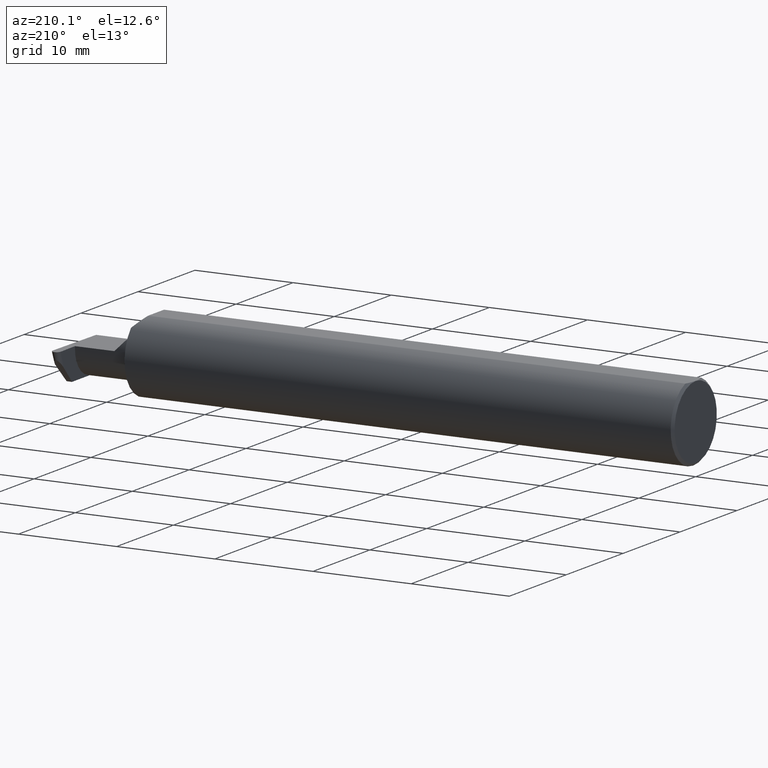
[diagram: clean part render]
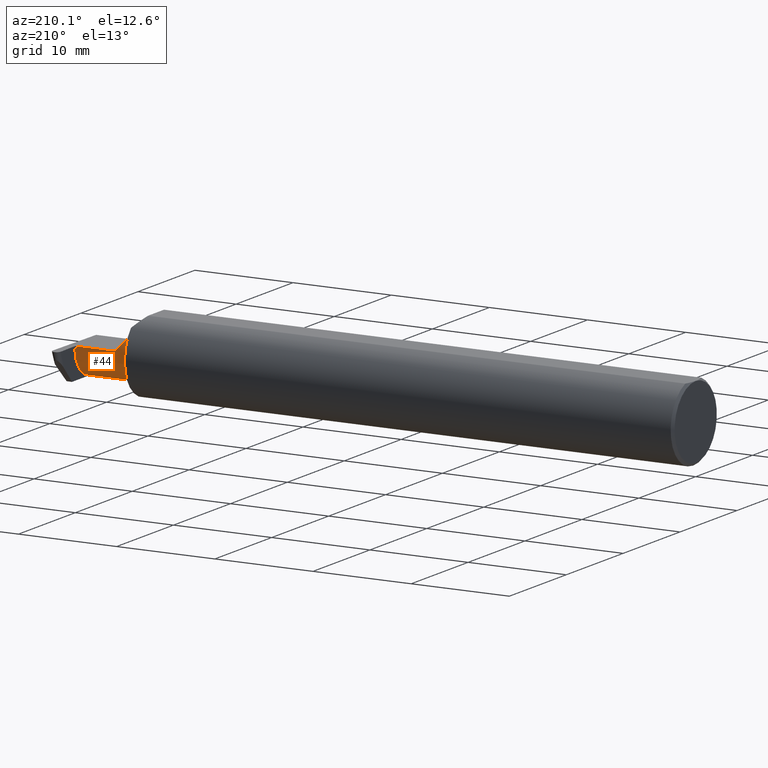
[diagram: same view with one face highlighted and labeled with its STEP entity id]
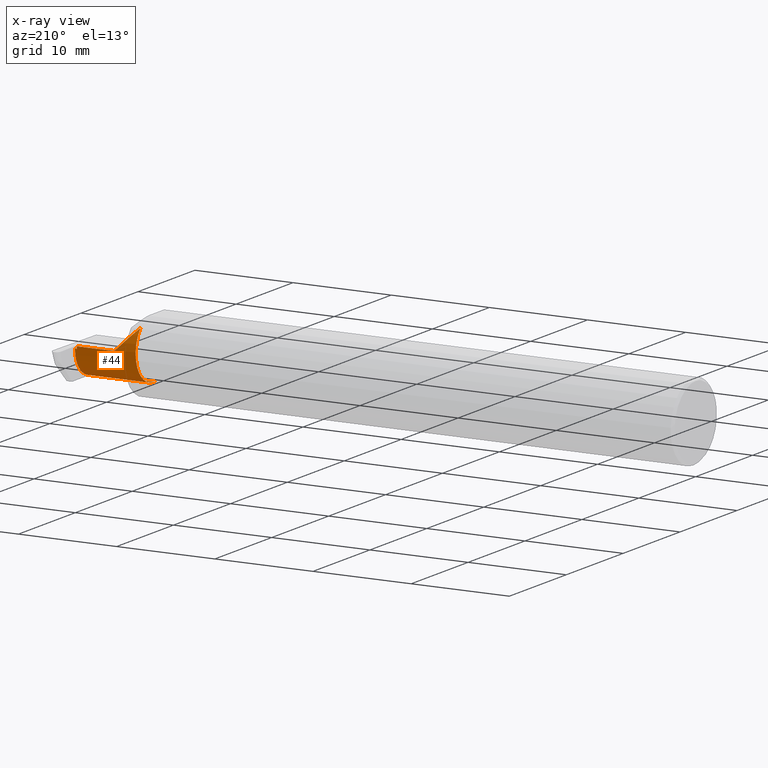
[diagram: x-ray of the same camera — body ghosted, the highlighted face saturated]
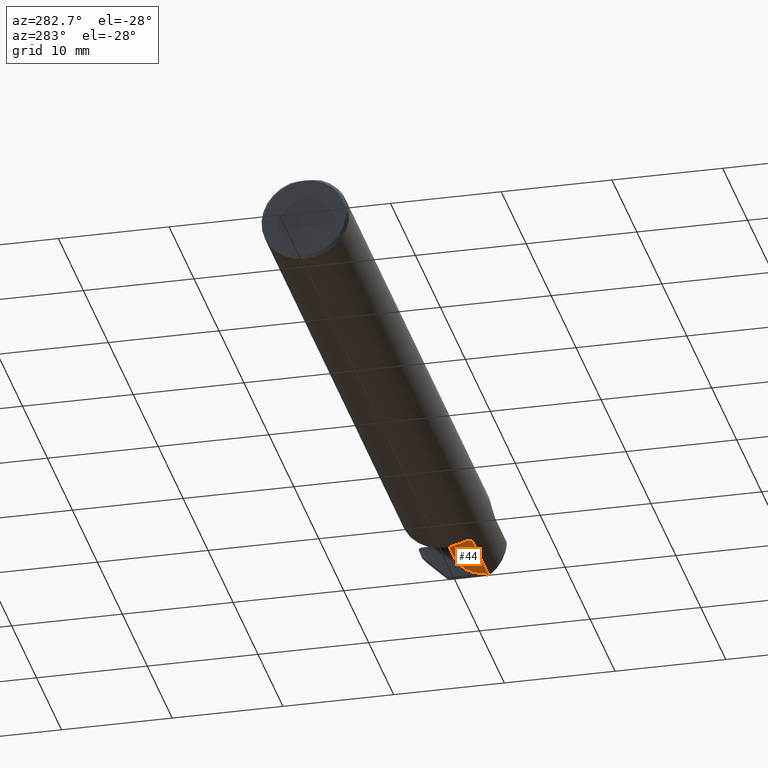
[diagram: same view with one face highlighted and labeled with its STEP entity id]
A machine part, auxiliary view. The second image highlights one B-rep face of the part: STEP entity #44.
The next image is the same camera in x-ray: the body ghosted, the highlighted face saturated — about 0% of this face is hidden behind the body in this view.
A second angle (auxiliary view) of the same face is appended — the face is thin or edge-on in the first view.
In plain terms, the highlighted cylindrical surface (edge-blend (fillet) strip) has radius 3.175 mm, axis along (-1, -0, -0).
Its self-contained STEP definition (entity closure, byte-faithful):
#4 = CARTESIAN_POINT ( 'NONE',  ( 2.248393398721534098, 0.02424716088558254157, 0.06160660127846561557 ) ) ;
#6 = ORIENTED_EDGE ( 'NONE', *, *, #64, .T. ) ;
#9 = CIRCLE ( 'NONE', #680, 0.1250000000000001110 ) ;
#26 = DIRECTION ( 'NONE',  ( -1.000000000000000000, -1.922274392784743754E-16, -0.000000000000000000 ) ) ;
#44 = ADVANCED_FACE ( 'NONE', ( #581 ), #416, .T. ) ;
#52 = CARTESIAN_POINT ( 'NONE',  ( 2.472736521078112926, -0.01986741890188668466, -0.1250000000000000833 ) ) ;
#54 = CARTESIAN_POINT ( 'NONE',  ( 2.310000000000000053, 0.03589999999999995278, 2.326828918379970872E-17 ) ) ;
#55 = VERTEX_POINT ( 'NONE', #389 ) ;
#64 = EDGE_CURVE ( 'NONE', #499, #238, #354, .T. ) ;
#79 = CARTESIAN_POINT ( 'NONE',  ( 2.345733190000000246, -0.09360841750841737696, -0.1249186702281520900 ) ) ;
#91 = ORIENTED_EDGE ( 'NONE', *, *, #528, .F. ) ;
#92 = CARTESIAN_POINT ( 'NONE',  ( 2.460968164375760381, 0.03569700418831855959, -0.005813039478679222008 ) ) ;
#99 = DIRECTION ( 'NONE',  ( -1.000000000000000000, -1.922274392784743754E-16, -0.000000000000000000 ) ) ;
#112 =( BOUNDED_CURVE ( )  B_SPLINE_CURVE ( 3, ( #591, #4, #652, #595 ),
 .UNSPECIFIED., .F., .F. ) 
 B_SPLINE_CURVE_WITH_KNOTS ( ( 4, 4 ),
 ( 0.8230336921349832302, 1.570796326794896780 ),
 .UNSPECIFIED. ) 
 CURVE ( )  GEOMETRIC_REPRESENTATION_ITEM ( )  RATIONAL_B_SPLINE_CURVE ( ( 1.000000000000000000, 0.9539445215436042069, 0.9539445215436042069, 1.000000000000000000 ) ) 
 REPRESENTATION_ITEM ( '' )  );
#120 = VERTEX_POINT ( 'NONE', #349 ) ;
#154 = DIRECTION ( 'NONE',  ( -1.000000000000000000, -1.922274392784743754E-16, -0.000000000000000000 ) ) ;
#170 = ORIENTED_EDGE ( 'NONE', *, *, #641, .F. ) ;
#180 = LINE ( 'NONE', #622, #521 ) ;
#185 = CARTESIAN_POINT ( 'NONE',  ( 2.689688574201023918, -0.08909999999999938802, -0.1250000000000000278 ) ) ;
#199 = ORIENTED_EDGE ( 'NONE', *, *, #594, .F. ) ;
#210 = DIRECTION ( 'NONE',  ( 0.000000000000000000, -1.000000000000000000, 0.000000000000000000 ) ) ;
#212 = CARTESIAN_POINT ( 'NONE',  ( 2.491661639235123182, -0.09060321336276788706, -0.1250000000000001110 ) ) ;
#238 = VERTEX_POINT ( 'NONE', #687 ) ;
#266 = VERTEX_POINT ( 'NONE', #365 ) ;
#272 = CARTESIAN_POINT ( 'NONE',  ( 2.491636351762904766, -0.09210618219364741233, -0.1249728871357008164 ) ) ;
#274 = CARTESIAN_POINT ( 'NONE',  ( 2.470997940024109774, 0.03076608555686829310, -0.07778349322819322342 ) ) ;
#280 = VERTEX_POINT ( 'NONE', #634 ) ;
#284 = B_SPLINE_CURVE_WITH_KNOTS ( 'NONE', 3,
 ( #363, #92, #603, #658 ),
 .UNSPECIFIED., .F., .F.,
 ( 4, 4 ),
 ( 0.000000000000000000, 1.000000000000000000 ),
 .UNSPECIFIED. ) ;
#304 = ORIENTED_EDGE ( 'NONE', *, *, #598, .T. ) ;
#319 =( BOUNDED_CURVE ( )  B_SPLINE_CURVE ( 3, ( #330, #52, #274, #424 ),
 .UNSPECIFIED., .F., .T. ) 
 B_SPLINE_CURVE_WITH_KNOTS ( ( 4, 4 ),
 ( 3.176499238629674426, 4.677482395344782162 ),
 .UNSPECIFIED. ) 
 CURVE ( )  GEOMETRIC_REPRESENTATION_ITEM ( )  RATIONAL_B_SPLINE_CURVE ( ( 1.000000000000000000, 0.8209024677461173036, 0.8209024677461173036, 1.000000000000000000 ) ) 
 REPRESENTATION_ITEM ( '' )  );
#329 = VERTEX_POINT ( 'NONE', #421 ) ;
#330 = CARTESIAN_POINT ( 'NONE',  ( 2.472822329339857461, -0.08910000000000001252, -0.1250000000000000555 ) ) ;
#333 = VERTEX_POINT ( 'NONE', #576 ) ;
#340 = ORIENTED_EDGE ( 'NONE', *, *, #407, .F. ) ;
#344 = VECTOR ( 'NONE', #444, 39.37007874015748143 ) ;
#349 = CARTESIAN_POINT ( 'NONE',  ( 2.460866666469919473, 0.03559550628247787341, -0.008719559218018849492 ) ) ;
#354 = LINE ( 'NONE', #558, #548 ) ;
#363 = CARTESIAN_POINT ( 'NONE',  ( 2.460866666469919473, 0.03559550628247787341, -0.008719559218018849492 ) ) ;
#365 = CARTESIAN_POINT ( 'NONE',  ( 2.225000000000000089, -0.09360841750841730757, -0.1249186702281521594 ) ) ;
#371 = CARTESIAN_POINT ( 'NONE',  ( 2.491612023732480807, -0.09360841750841733533, -0.1249186702281520900 ) ) ;
#381 = EDGE_CURVE ( 'NONE', #333, #55, #571, .T. ) ;
#389 = CARTESIAN_POINT ( 'NONE',  ( 2.491687877921971328, -0.08909999999999938802, -0.1250000000000000278 ) ) ;
#396 = DIRECTION ( 'NONE',  ( -1.000000000000000000, -1.922274392784743754E-16, -0.000000000000000000 ) ) ;
#407 = EDGE_CURVE ( 'NONE', #120, #238, #284, .T. ) ;
#411 = CARTESIAN_POINT ( 'NONE',  ( 2.225000000000000089, -0.08910000000000006803, 0.000000000000000000 ) ) ;
#416 = CYLINDRICAL_SURFACE ( 'NONE', #517, 0.1250000000000000555 ) ;
#421 = CARTESIAN_POINT ( 'NONE',  ( 2.468540712907033807, 0.03559550628247792198, -0.008719559218017548449 ) ) ;
#424 = CARTESIAN_POINT ( 'NONE',  ( 2.468540712907033807, 0.03559550628247792198, -0.008719559218017548449 ) ) ;
#427 = VECTOR ( 'NONE', #396, 39.37007874015748143 ) ;
#439 = ORIENTED_EDGE ( 'NONE', *, *, #381, .F. ) ;
#444 = DIRECTION ( 'NONE',  ( -1.000000000000000000, -0.000000000000000000, -0.000000000000000000 ) ) ;
#461 = LINE ( 'NONE', #185, #344 ) ;
#477 = CARTESIAN_POINT ( 'NONE',  ( 2.491687877921971328, -0.08909999999999938802, -0.1250000000000000278 ) ) ;
#499 = VERTEX_POINT ( 'NONE', #54 ) ;
#517 = AXIS2_PLACEMENT_3D ( 'NONE', #637, #99, #210 ) ;
#521 = VECTOR ( 'NONE', #26, 39.37007874015748143 ) ;
#522 = DIRECTION ( 'NONE',  ( 0.000000000000000000, -1.000000000000000000, 0.000000000000000000 ) ) ;
#528 = EDGE_CURVE ( 'NONE', #280, #329, #319, .T. ) ;
#534 = EDGE_CURVE ( 'NONE', #569, #499, #112, .T. ) ;
#539 = ORIENTED_EDGE ( 'NONE', *, *, #534, .T. ) ;
#548 = VECTOR ( 'NONE', #553, 39.37007874015748143 ) ;
#553 = DIRECTION ( 'NONE',  ( 1.000000000000000000, 1.922274392784743754E-16, 0.000000000000000000 ) ) ;
#558 = CARTESIAN_POINT ( 'NONE',  ( 2.200000000000000178, 0.03589999999999998748, 3.673940397442061347E-17 ) ) ;
#569 = VERTEX_POINT ( 'NONE', #676 ) ;
#571 =( BOUNDED_CURVE ( )  B_SPLINE_CURVE ( 3, ( #371, #272, #212, #477 ),
 .UNSPECIFIED., .F., .F. ) 
 B_SPLINE_CURVE_WITH_KNOTS ( ( 4, 4 ),
 ( 0.4273896528388683724, 0.4634648172053348336 ),
 .UNSPECIFIED. ) 
 CURVE ( )  GEOMETRIC_REPRESENTATION_ITEM ( )  RATIONAL_B_SPLINE_CURVE ( ( 1.000000000000000000, 0.9998915514833921492, 0.9998915514833921492, 1.000000000000000000 ) ) 
 REPRESENTATION_ITEM ( '' )  );
#576 = CARTESIAN_POINT ( 'NONE',  ( 2.491612023732480807, -0.09360841750841733533, -0.1249186702281520900 ) ) ;
#581 = FACE_OUTER_BOUND ( 'NONE', #662, .T. ) ;
#591 = CARTESIAN_POINT ( 'NONE',  ( 2.225000000000000089, 0.002551513899117411211, 0.08499999999999943712 ) ) ;
#594 = EDGE_CURVE ( 'NONE', #55, #280, #461, .T. ) ;
#595 = CARTESIAN_POINT ( 'NONE',  ( 2.310000000000000053, 0.03589999999999995278, 2.326828918379970872E-17 ) ) ;
#598 = EDGE_CURVE ( 'NONE', #333, #266, #666, .T. ) ;
#603 = CARTESIAN_POINT ( 'NONE',  ( 2.461069662281600845, 0.03579850209415925966, -0.002906519739339611004 ) ) ;
#622 = CARTESIAN_POINT ( 'NONE',  ( 2.200000000000000178, 0.03559550628247794279, -0.008719559218016948235 ) ) ;
#634 = CARTESIAN_POINT ( 'NONE',  ( 2.472822329339857461, -0.08910000000000001252, -0.1250000000000000555 ) ) ;
#637 = CARTESIAN_POINT ( 'NONE',  ( 2.200000000000000178, -0.08910000000000006803, 0.000000000000000000 ) ) ;
#641 = EDGE_CURVE ( 'NONE', #329, #120, #180, .T. ) ;
#652 = CARTESIAN_POINT ( 'NONE',  ( 2.278094636784609772, 0.03589999999999997360, 0.03190536321539021863 ) ) ;
#658 = CARTESIAN_POINT ( 'NONE',  ( 2.461171160187441309, 0.03589999999999995278, 0.000000000000000000 ) ) ;
#662 = EDGE_LOOP ( 'NONE', ( #304, #690, #539, #6, #340, #170, #91, #199, #439 ) ) ;
#666 = LINE ( 'NONE', #79, #427 ) ;
#676 = CARTESIAN_POINT ( 'NONE',  ( 2.225000000000000089, 0.002551513899117411211, 0.08499999999999943712 ) ) ;
#680 = AXIS2_PLACEMENT_3D ( 'NONE', #411, #154, #522 ) ;
#687 = CARTESIAN_POINT ( 'NONE',  ( 2.461171160187441309, 0.03589999999999995278, 0.000000000000000000 ) ) ;
#690 = ORIENTED_EDGE ( 'NONE', *, *, #696, .F. ) ;
#696 = EDGE_CURVE ( 'NONE', #569, #266, #9, .T. ) ;